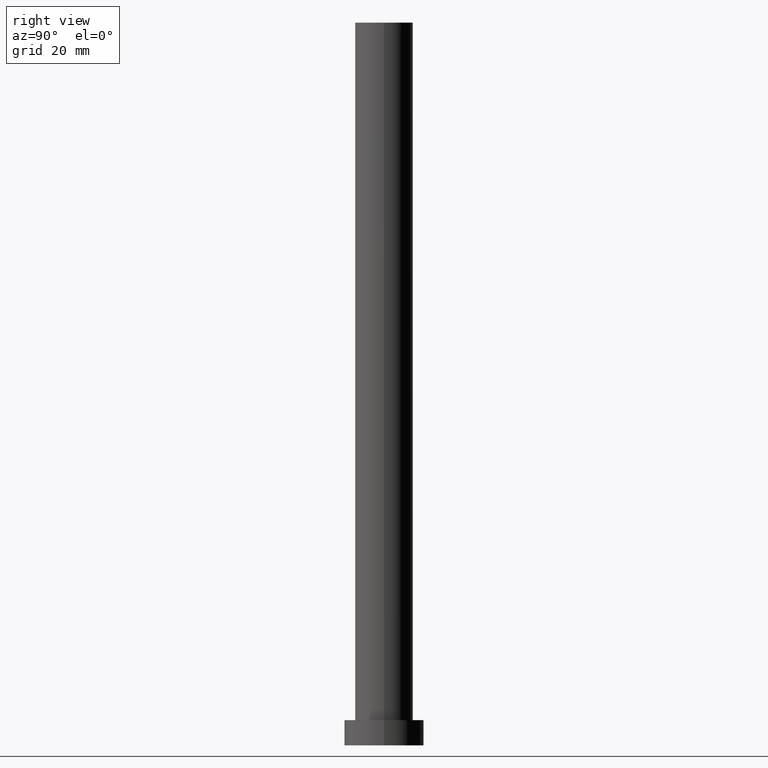
[diagram: clean part render]
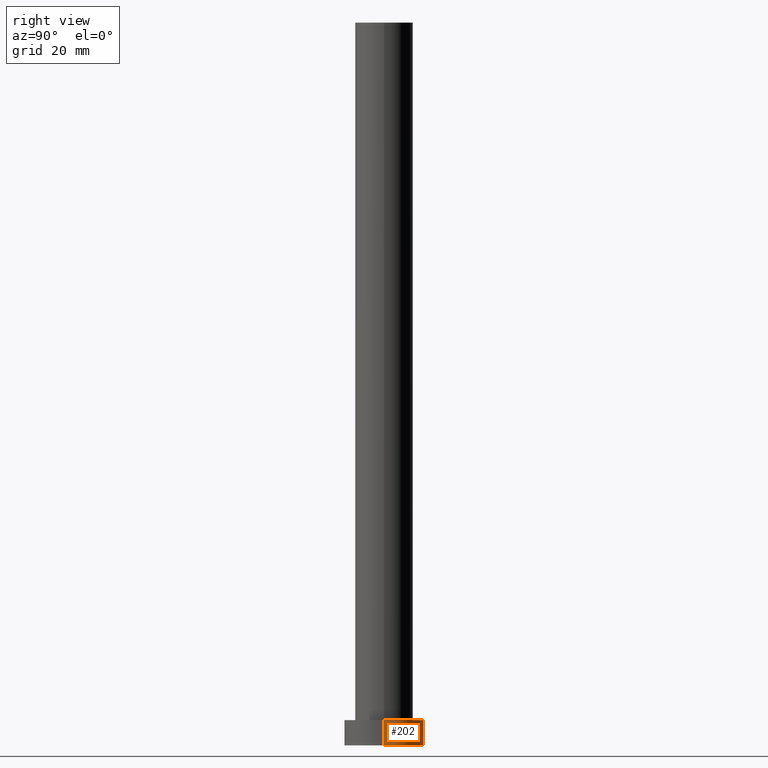
[diagram: same view with one face highlighted and labeled with its STEP entity id]
A machine part, right view. The second image highlights one B-rep face of the part: STEP entity #202.
In plain terms, the highlighted cylindrical surface (partial cylindrical patch) has radius 11 mm, axis along (-0, -0, -1).
Its self-contained STEP definition (entity closure, byte-faithful):
#2 = AXIS2_PLACEMENT_3D ( 'NONE', #199, #49, #193 ) ;
#12 = VERTEX_POINT ( 'NONE', #142 ) ;
#13 = VERTEX_POINT ( 'NONE', #252 ) ;
#14 = VERTEX_POINT ( 'NONE', #188 ) ;
#19 = DIRECTION ( 'NONE',  ( -0.000000000000000000, -0.000000000000000000, -1.000000000000000000 ) ) ;
#31 = VECTOR ( 'NONE', #19, 1000.000000000000000 ) ;
#35 = AXIS2_PLACEMENT_3D ( 'NONE', #136, #171, #46 ) ;
#38 = EDGE_LOOP ( 'NONE', ( #57, #106, #210, #248 ) ) ;
#39 = EDGE_CURVE ( 'NONE', #12, #14, #141, .T. ) ;
#40 = CARTESIAN_POINT ( 'NONE',  ( -11.00000000000000000, 0.000000000000000000, 7.000000000000000000 ) ) ;
#46 = DIRECTION ( 'NONE',  ( 1.000000000000000000, 0.000000000000000000, 0.000000000000000000 ) ) ;
#49 = DIRECTION ( 'NONE',  ( -0.000000000000000000, -0.000000000000000000, -1.000000000000000000 ) ) ;
#57 = ORIENTED_EDGE ( 'NONE', *, *, #247, .F. ) ;
#69 = EDGE_CURVE ( 'NONE', #165, #14, #137, .T. ) ;
#95 = FACE_OUTER_BOUND ( 'NONE', #38, .T. ) ;
#106 = ORIENTED_EDGE ( 'NONE', *, *, #170, .T. ) ;
#120 = DIRECTION ( 'NONE',  ( 1.000000000000000000, 0.000000000000000000, 0.000000000000000000 ) ) ;
#122 = CYLINDRICAL_SURFACE ( 'NONE', #2, 11.00000000000000000 ) ;
#132 = CARTESIAN_POINT ( 'NONE',  ( 0.000000000000000000, 0.000000000000000000, 7.000000000000000000 ) ) ;
#135 = AXIS2_PLACEMENT_3D ( 'NONE', #132, #172, #120 ) ;
#136 = CARTESIAN_POINT ( 'NONE',  ( 0.000000000000000000, 0.000000000000000000, 0.000000000000000000 ) ) ;
#137 = CIRCLE ( 'NONE', #35, 11.00000000000000000 ) ;
#141 = LINE ( 'NONE', #40, #151 ) ;
#142 = CARTESIAN_POINT ( 'NONE',  ( -11.00000000000000000, 0.000000000000000000, 7.000000000000000000 ) ) ;
#145 = CARTESIAN_POINT ( 'NONE',  ( 11.00000000000000000, 1.347111479062088405E-15, 7.000000000000000000 ) ) ;
#151 = VECTOR ( 'NONE', #206, 1000.000000000000000 ) ;
#156 = LINE ( 'NONE', #145, #31 ) ;
#162 = CARTESIAN_POINT ( 'NONE',  ( 11.00000000000000000, 1.347111479062088405E-15, 0.000000000000000000 ) ) ;
#165 = VERTEX_POINT ( 'NONE', #162 ) ;
#170 = EDGE_CURVE ( 'NONE', #13, #165, #156, .T. ) ;
#171 = DIRECTION ( 'NONE',  ( 0.000000000000000000, 0.000000000000000000, 1.000000000000000000 ) ) ;
#172 = DIRECTION ( 'NONE',  ( 0.000000000000000000, 0.000000000000000000, 1.000000000000000000 ) ) ;
#188 = CARTESIAN_POINT ( 'NONE',  ( -11.00000000000000000, 0.000000000000000000, 0.000000000000000000 ) ) ;
#193 = DIRECTION ( 'NONE',  ( -1.000000000000000000, 0.000000000000000000, 0.000000000000000000 ) ) ;
#199 = CARTESIAN_POINT ( 'NONE',  ( 0.000000000000000000, 0.000000000000000000, 7.000000000000000000 ) ) ;
#202 = ADVANCED_FACE ( 'NONE', ( #95 ), #122, .T. ) ;
#206 = DIRECTION ( 'NONE',  ( -0.000000000000000000, -0.000000000000000000, -1.000000000000000000 ) ) ;
#210 = ORIENTED_EDGE ( 'NONE', *, *, #69, .T. ) ;
#218 = CIRCLE ( 'NONE', #135, 11.00000000000000000 ) ;
#247 = EDGE_CURVE ( 'NONE', #13, #12, #218, .T. ) ;
#248 = ORIENTED_EDGE ( 'NONE', *, *, #39, .F. ) ;
#252 = CARTESIAN_POINT ( 'NONE',  ( 11.00000000000000000, 1.347111479062088405E-15, 7.000000000000000000 ) ) ;